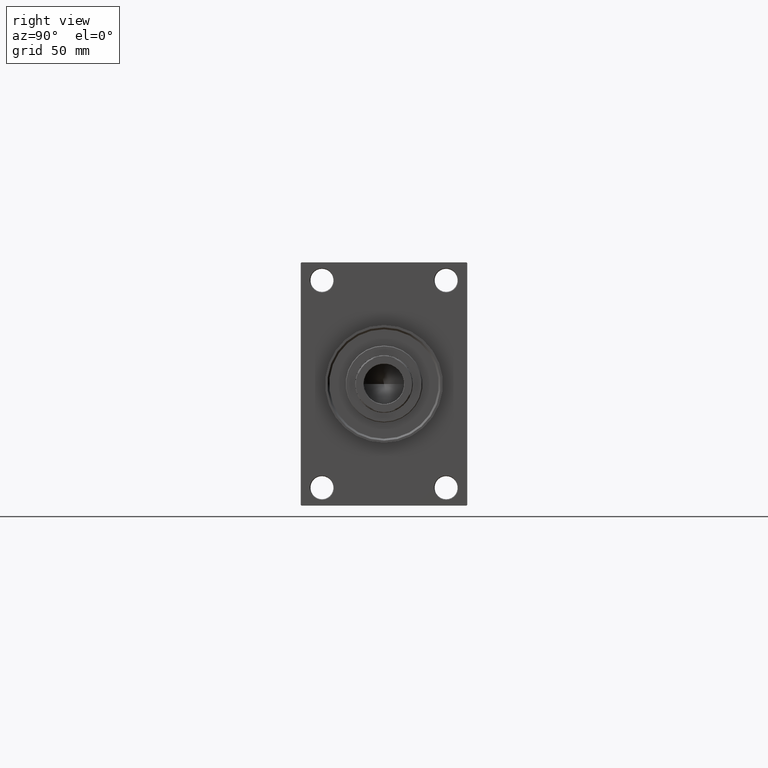
[diagram: clean part render]
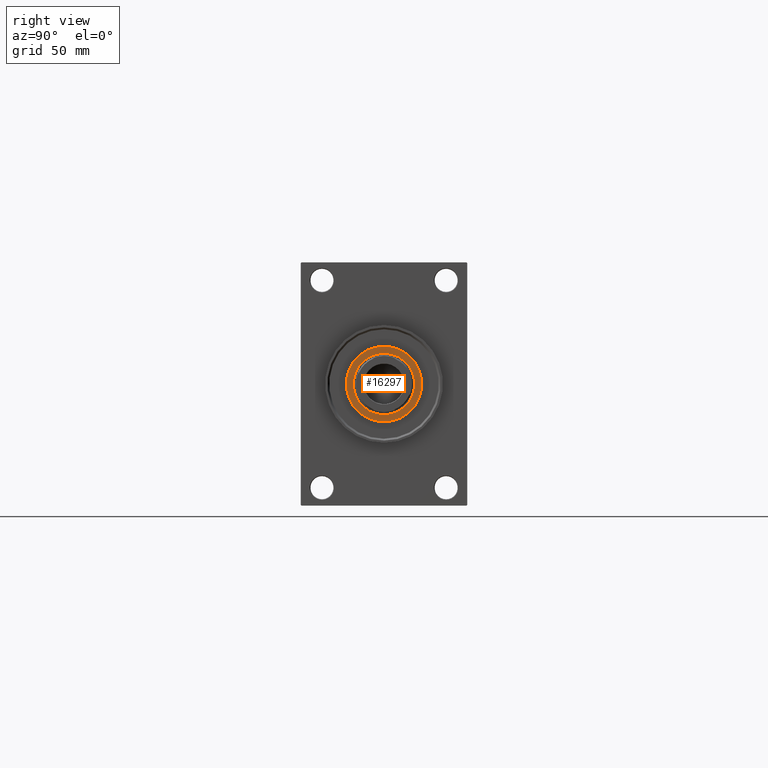
[diagram: same view with one face highlighted and labeled with its STEP entity id]
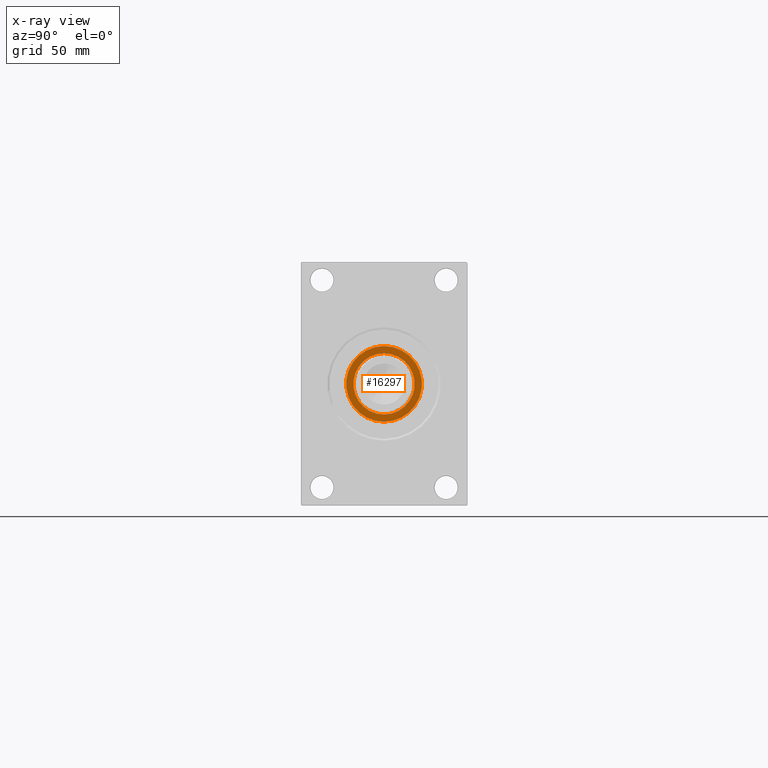
[diagram: x-ray of the same camera — body ghosted, the highlighted face saturated]
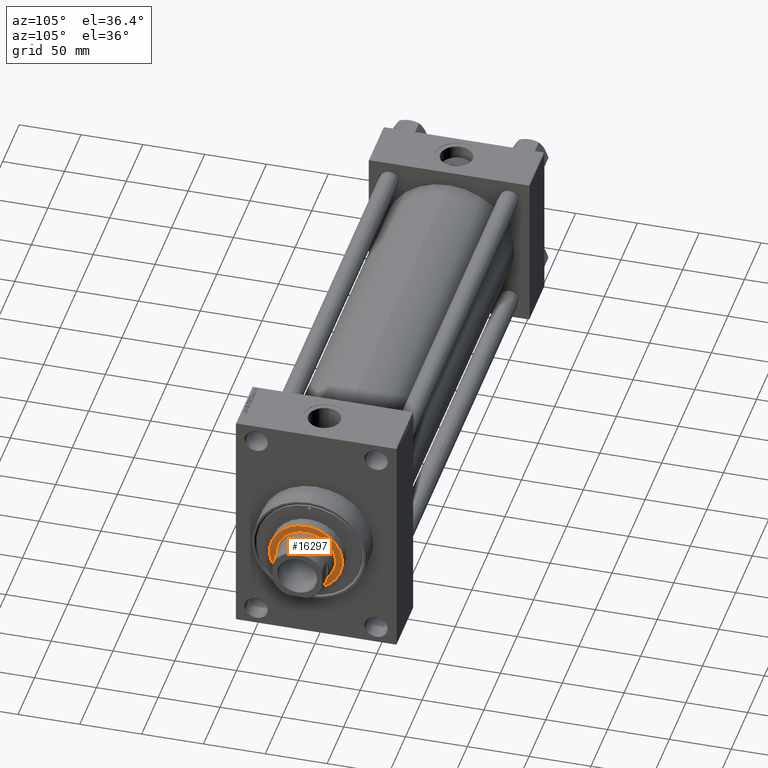
[diagram: same view with one face highlighted and labeled with its STEP entity id]
A machine part, right view. The second image highlights one B-rep face of the part: STEP entity #16297.
The next image is the same camera in x-ray: the body ghosted, the highlighted face saturated — about 0% of this face is hidden behind the body in this view.
A second angle (auxiliary view) of the same face is appended — the face is thin or edge-on in the first view.
In plain terms, the highlighted planar face has unit normal (1, -0, -0).
Its self-contained STEP definition (entity closure, byte-faithful):
#113 = EDGE_CURVE ( 'NONE', #37659, #24430, #15782, .T. ) ;
#1301 = FACE_BOUND ( 'NONE', #5055, .T. ) ;
#1984 = CARTESIAN_POINT ( 'NONE',  ( 24.00000000000000355, 0.000000000000000000, 52.25999999999999801 ) ) ;
#4306 = CARTESIAN_POINT ( 'NONE',  ( -29.50000000000000000, 0.000000000000000000, 52.25999999999999801 ) ) ;
#4364 = CARTESIAN_POINT ( 'NONE',  ( -24.00000000000000355, 2.939152317953648289E-15, 52.25999999999999801 ) ) ;
#5055 = EDGE_LOOP ( 'NONE', ( #26045, #5958 ) ) ;
#5958 = ORIENTED_EDGE ( 'NONE', *, *, #20192, .F. ) ;
#6953 = CIRCLE ( 'NONE', #32455, 24.00000000000000355 ) ;
#8558 = FACE_OUTER_BOUND ( 'NONE', #11224, .T. ) ;
#8802 = DIRECTION ( 'NONE',  ( 1.000000000000000000, 0.000000000000000000, -0.000000000000000000 ) ) ;
#10707 = DIRECTION ( 'NONE',  ( 0.000000000000000000, 0.000000000000000000, 1.000000000000000000 ) ) ;
#11224 = EDGE_LOOP ( 'NONE', ( #18760, #41777 ) ) ;
#12428 = CARTESIAN_POINT ( 'NONE',  ( 0.000000000000000000, 0.000000000000000000, 52.25999999999999801 ) ) ;
#15078 = CARTESIAN_POINT ( 'NONE',  ( 0.000000000000000000, 0.000000000000000000, 52.25999999999999801 ) ) ;
#15782 = CIRCLE ( 'NONE', #21210, 24.00000000000000355 ) ;
#16297 = ADVANCED_FACE ( 'NONE', ( #1301, #8558 ), #26688, .T. ) ;
#18689 = CARTESIAN_POINT ( 'NONE',  ( 0.000000000000000000, 0.000000000000000000, 52.25999999999999801 ) ) ;
#18760 = ORIENTED_EDGE ( 'NONE', *, *, #27931, .T. ) ;
#20192 = EDGE_CURVE ( 'NONE', #24430, #37659, #6953, .T. ) ;
#21210 = AXIS2_PLACEMENT_3D ( 'NONE', #18689, #33464, #29829 ) ;
#21454 = CARTESIAN_POINT ( 'NONE',  ( 0.000000000000000000, 0.000000000000000000, 52.25999999999999801 ) ) ;
#22564 = DIRECTION ( 'NONE',  ( 1.000000000000000000, 0.000000000000000000, 0.000000000000000000 ) ) ;
#23793 = AXIS2_PLACEMENT_3D ( 'NONE', #12428, #41010, #8802 ) ;
#24430 = VERTEX_POINT ( 'NONE', #4364 ) ;
#26045 = ORIENTED_EDGE ( 'NONE', *, *, #113, .F. ) ;
#26373 = AXIS2_PLACEMENT_3D ( 'NONE', #15078, #33939, #22564 ) ;
#26688 = PLANE ( 'NONE',  #23793 ) ;
#27931 = EDGE_CURVE ( 'NONE', #44518, #35214, #40330, .T. ) ;
#29089 = CARTESIAN_POINT ( 'NONE',  ( 29.50000000000000000, 3.643324227463375391E-15, 52.25999999999999801 ) ) ;
#29829 = DIRECTION ( 'NONE',  ( 1.000000000000000000, 0.000000000000000000, 0.000000000000000000 ) ) ;
#29906 = AXIS2_PLACEMENT_3D ( 'NONE', #43874, #10707, #36596 ) ;
#32455 = AXIS2_PLACEMENT_3D ( 'NONE', #21454, #35755, #32606 ) ;
#32606 = DIRECTION ( 'NONE',  ( 1.000000000000000000, 0.000000000000000000, 0.000000000000000000 ) ) ;
#33464 = DIRECTION ( 'NONE',  ( 0.000000000000000000, 0.000000000000000000, 1.000000000000000000 ) ) ;
#33939 = DIRECTION ( 'NONE',  ( 0.000000000000000000, 0.000000000000000000, 1.000000000000000000 ) ) ;
#34537 = CIRCLE ( 'NONE', #29906, 29.50000000000000000 ) ;
#35214 = VERTEX_POINT ( 'NONE', #29089 ) ;
#35228 = EDGE_CURVE ( 'NONE', #35214, #44518, #34537, .T. ) ;
#35755 = DIRECTION ( 'NONE',  ( 0.000000000000000000, 0.000000000000000000, 1.000000000000000000 ) ) ;
#36596 = DIRECTION ( 'NONE',  ( 1.000000000000000000, 0.000000000000000000, 0.000000000000000000 ) ) ;
#37659 = VERTEX_POINT ( 'NONE', #1984 ) ;
#40330 = CIRCLE ( 'NONE', #26373, 29.50000000000000000 ) ;
#41010 = DIRECTION ( 'NONE',  ( 0.000000000000000000, 0.000000000000000000, 1.000000000000000000 ) ) ;
#41777 = ORIENTED_EDGE ( 'NONE', *, *, #35228, .T. ) ;
#43874 = CARTESIAN_POINT ( 'NONE',  ( 0.000000000000000000, 0.000000000000000000, 52.25999999999999801 ) ) ;
#44518 = VERTEX_POINT ( 'NONE', #4306 ) ;